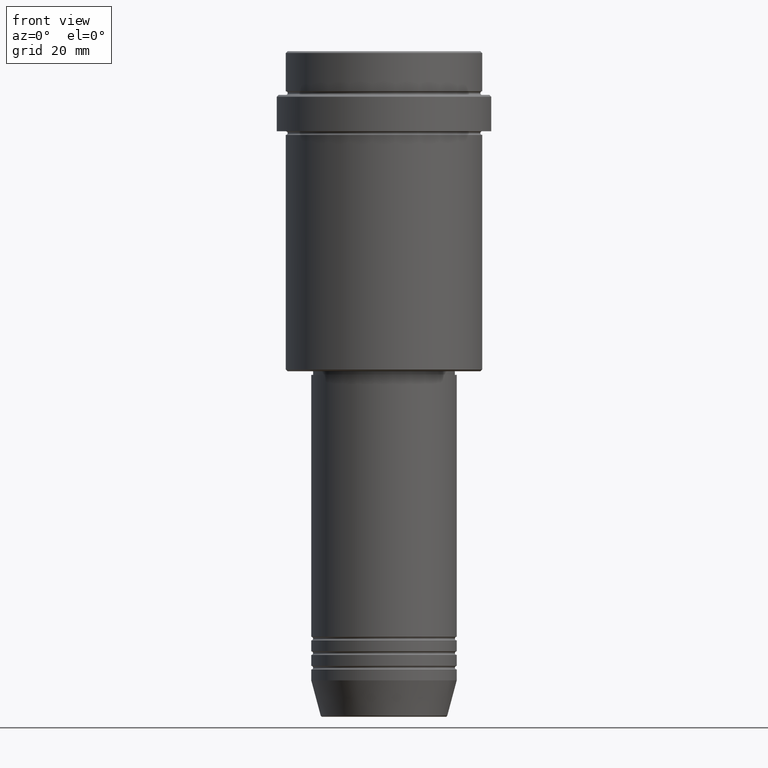
[diagram: clean part render]
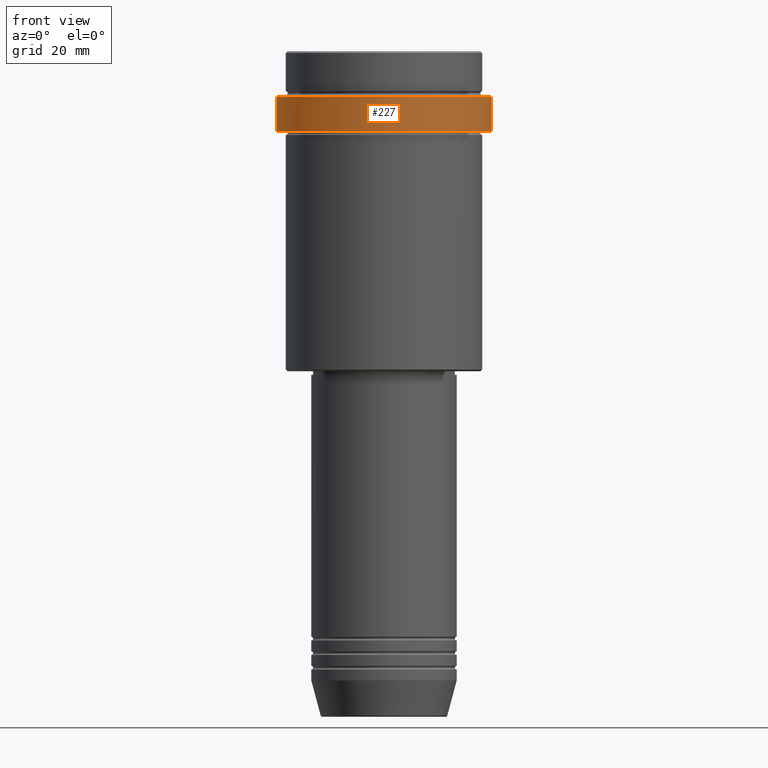
[diagram: same view with one face highlighted and labeled with its STEP entity id]
A machine part, front view. The second image highlights one B-rep face of the part: STEP entity #227.
In plain terms, the highlighted cylindrical surface (partial cylindrical patch) has radius 29.5 mm, axis along (-0, -0, 1).
Its self-contained STEP definition (entity closure, byte-faithful):
#13 = AXIS2_PLACEMENT_3D ( 'NONE', #502, #1377, #622 ) ;
#46 = DIRECTION ( 'NONE',  ( 1.000000000000000000, 0.000000000000000000, 0.000000000000000000 ) ) ;
#74 = CARTESIAN_POINT ( 'NONE',  ( -29.49999999999999645, 3.612708057484690815E-15, -21.99999999999999289 ) ) ;
#143 = CARTESIAN_POINT ( 'NONE',  ( 0.000000000000000000, 0.000000000000000000, 0.000000000000000000 ) ) ;
#148 = DIRECTION ( 'NONE',  ( -0.000000000000000000, -0.000000000000000000, 1.000000000000000000 ) ) ;
#222 = VECTOR ( 'NONE', #148, 1000.000000000000000 ) ;
#227 = ADVANCED_FACE ( 'NONE', ( #1332 ), #354, .T. ) ;
#277 = VERTEX_POINT ( 'NONE', #410 ) ;
#278 = DIRECTION ( 'NONE',  ( -0.000000000000000000, -0.000000000000000000, 1.000000000000000000 ) ) ;
#326 = VERTEX_POINT ( 'NONE', #74 ) ;
#354 = CYLINDRICAL_SURFACE ( 'NONE', #764, 29.50000000000000000 ) ;
#410 = CARTESIAN_POINT ( 'NONE',  ( -29.50000000000000000, 3.612708057484691604E-15, -12.50000000000001776 ) ) ;
#461 = CARTESIAN_POINT ( 'NONE',  ( 29.50000000000000000, 0.000000000000000000, 0.000000000000000000 ) ) ;
#502 = CARTESIAN_POINT ( 'NONE',  ( 0.000000000000000000, 0.000000000000000000, -12.50000000000001776 ) ) ;
#564 = CARTESIAN_POINT ( 'NONE',  ( 0.000000000000000000, 0.000000000000000000, -21.99999999999999289 ) ) ;
#583 = LINE ( 'NONE', #682, #1094 ) ;
#585 = DIRECTION ( 'NONE',  ( 1.000000000000000000, 0.000000000000000000, 0.000000000000000000 ) ) ;
#587 = EDGE_CURVE ( 'NONE', #790, #1305, #997, .T. ) ;
#622 = DIRECTION ( 'NONE',  ( 1.000000000000000000, 0.000000000000000000, 0.000000000000000000 ) ) ;
#646 = CIRCLE ( 'NONE', #13, 29.50000000000000000 ) ;
#653 = EDGE_CURVE ( 'NONE', #326, #277, #583, .T. ) ;
#664 = EDGE_CURVE ( 'NONE', #326, #790, #1387, .T. ) ;
#679 = EDGE_LOOP ( 'NONE', ( #1083, #1311, #1130, #1045 ) ) ;
#682 = CARTESIAN_POINT ( 'NONE',  ( -29.50000000000000000, 3.612708057484691604E-15, 0.000000000000000000 ) ) ;
#764 = AXIS2_PLACEMENT_3D ( 'NONE', #143, #1245, #585 ) ;
#788 = EDGE_CURVE ( 'NONE', #1305, #277, #646, .T. ) ;
#790 = VERTEX_POINT ( 'NONE', #941 ) ;
#941 = CARTESIAN_POINT ( 'NONE',  ( 29.49999999999999645, 0.000000000000000000, -21.99999999999999289 ) ) ;
#997 = LINE ( 'NONE', #461, #222 ) ;
#1045 = ORIENTED_EDGE ( 'NONE', *, *, #788, .T. ) ;
#1083 = ORIENTED_EDGE ( 'NONE', *, *, #653, .F. ) ;
#1094 = VECTOR ( 'NONE', #1313, 1000.000000000000000 ) ;
#1130 = ORIENTED_EDGE ( 'NONE', *, *, #587, .T. ) ;
#1143 = AXIS2_PLACEMENT_3D ( 'NONE', #564, #278, #46 ) ;
#1245 = DIRECTION ( 'NONE',  ( -0.000000000000000000, -0.000000000000000000, 1.000000000000000000 ) ) ;
#1305 = VERTEX_POINT ( 'NONE', #1327 ) ;
#1311 = ORIENTED_EDGE ( 'NONE', *, *, #664, .T. ) ;
#1313 = DIRECTION ( 'NONE',  ( -0.000000000000000000, -0.000000000000000000, 1.000000000000000000 ) ) ;
#1327 = CARTESIAN_POINT ( 'NONE',  ( 29.50000000000000000, 0.000000000000000000, -12.50000000000001776 ) ) ;
#1332 = FACE_OUTER_BOUND ( 'NONE', #679, .T. ) ;
#1377 = DIRECTION ( 'NONE',  ( 0.000000000000000000, 0.000000000000000000, -1.000000000000000000 ) ) ;
#1387 = CIRCLE ( 'NONE', #1143, 29.49999999999999645 ) ;